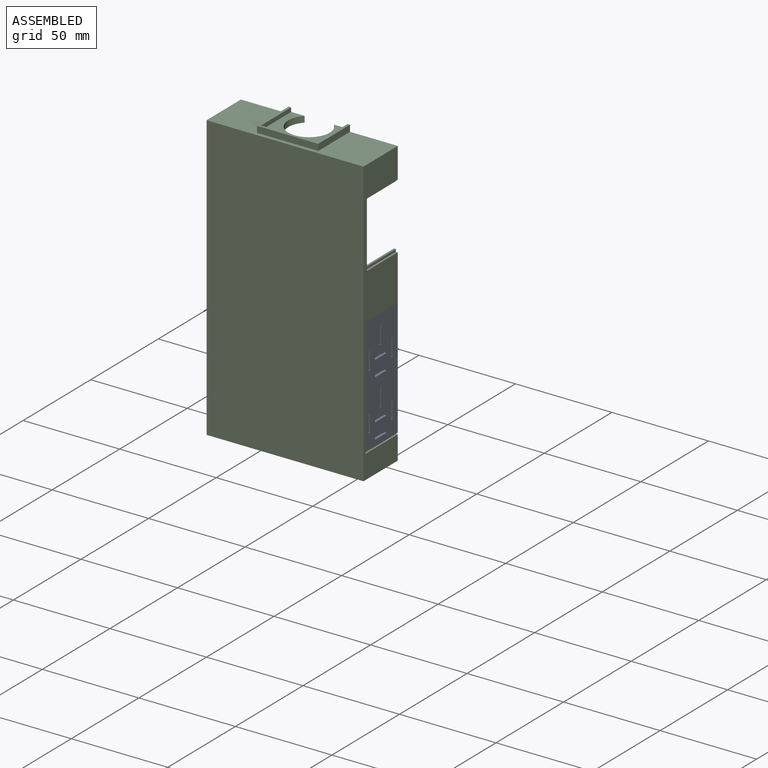
[diagram: assembled view]
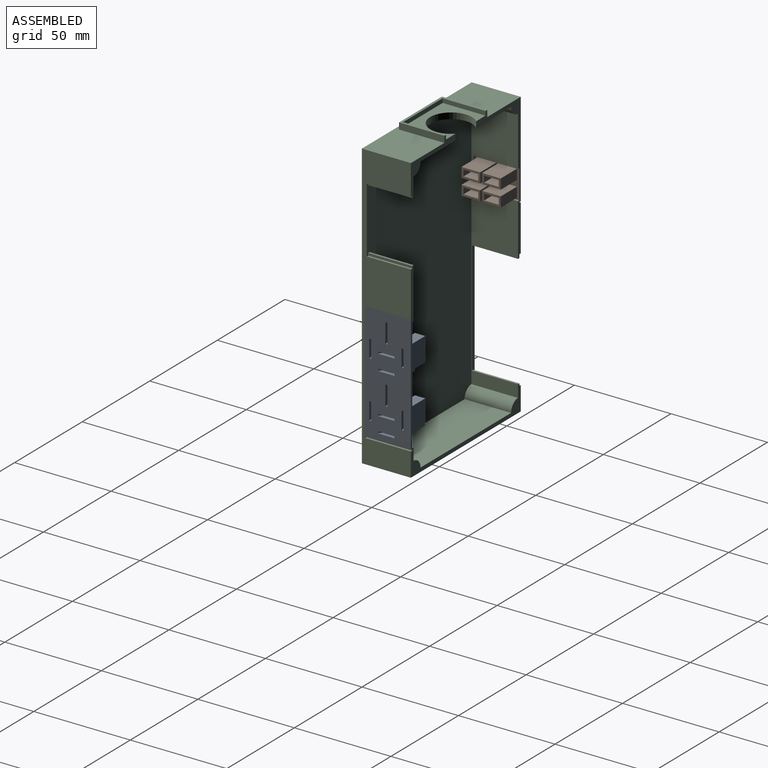
[diagram: assembled view, second angle]
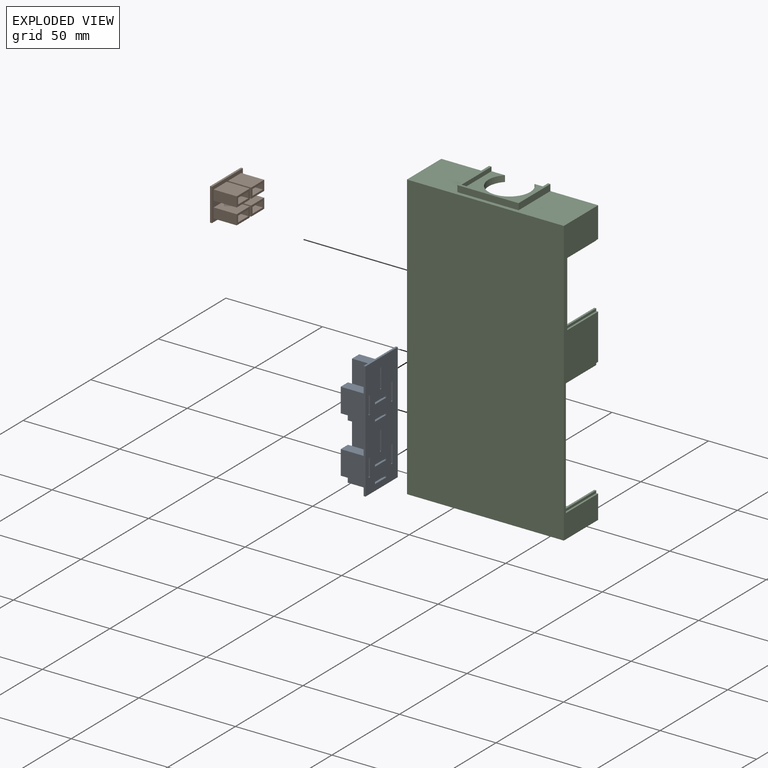
[diagram: exploded view]
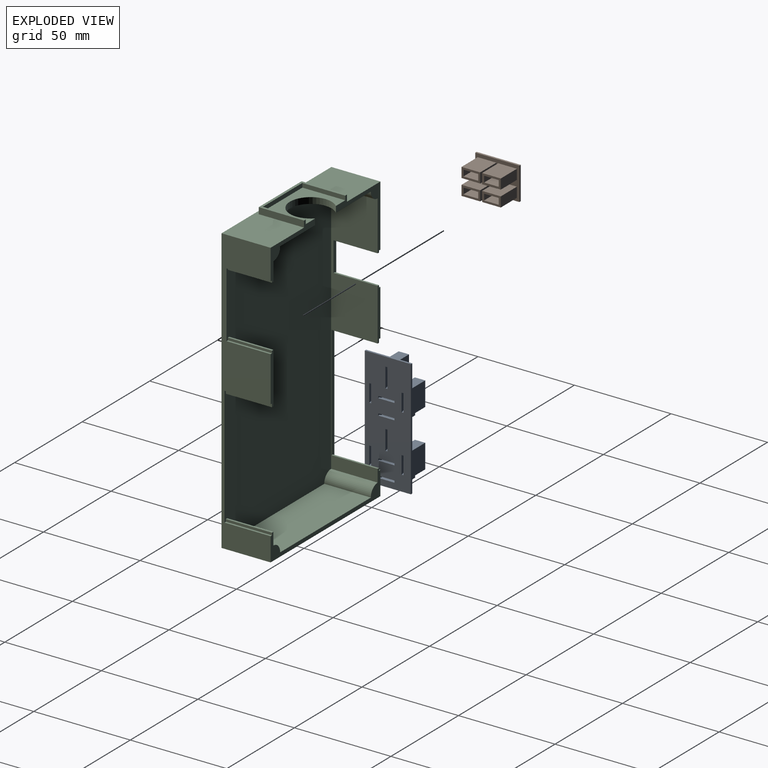
[diagram: exploded view, second angle]
ASSEMBLY  parts=3 mates=4
PART A: 142 faces, bbox 23.9x13x61 mm
  f0: plane 60.96x23.88mm, normal (0,-1,0), area 1363.6mm2, adj f12,f13,f14,f15,f16,f17,f18,f19
  f1: plane 60.96x23.88mm, normal (0,1,0), area 735.9mm2, adj f12,f13,f34,f55,f56,f57,f62,f79
  f2: plane 9.65x3.3mm, normal (0,1,0), area 23.4mm2, adj f35,f36,f37,f38,f110,f111,f112,f133
  f3: plane 9.65x3.3mm, normal (0,1,0), area 23.4mm2, adj f39,f40,f41,f42,f113,f114,f115,f134
  f4: plane 10.41x3.3mm, normal (0,1,0), area 25.1mm2, adj f43,f44,f45,f46,f116,f117,f118,f135
  f5: plane 11.43x3.3mm, normal (0,1,0), area 27.4mm2, adj f47,f48,f49,f50,f101,f102,f103,f104
  f6: plane 9.65x3.3mm, normal (0,1,0), area 23.4mm2, adj f22,f23,f24,f25,f67,f68,f69,f90
  f7: plane 9.65x3.3mm, normal (0,1,0), area 23.4mm2, adj f18,f19,f20,f21,f73,f74,f75,f92
  f8: plane 10.41x3.3mm, normal (0,1,0), area 25.1mm2, adj f30,f31,f32,f33,f70,f71,f72,f91
  f9: plane 10.41x3.3mm, normal (0,1,0), area 25.1mm2, adj f26,f27,f28,f29,f64,f65,f66,f95
  f10: plane 11.43x3.3mm, normal (0,1,0), area 27.4mm2, adj f14,f15,f16,f17,f58,f59,f60,f61
  f11: plane 10.41x3.3mm, normal (0,1,0), area 25.1mm2, adj f51,f52,f53,f54,f107,f108,f109,f138
  f12: plane 60.96x1.02mm, normal (1,0,0), area 61.9mm2, adj f0,f1,f13,f34
  f13: plane 23.88x1.02mm, normal (0,0,1), area 24.3mm2, adj f0,f1,f12,f141
  f14: plane 10.16x1.02mm, normal (-1,0,0), area 10.3mm2, adj f0,f10,f15,f17
  f15: plane 1.02x1.02mm, normal (0,0,-1), area 1mm2, adj f0,f10,f14,f16
  f16: plane 10.16x1.02mm, normal (1,0,0), area 10.3mm2, adj f0,f10,f15,f17
  f17: plane 1.02x1.02mm, normal (0,0,1), area 1mm2, adj f0,f10,f14,f16
  f18: plane 8.38x1.02mm, normal (0,0,-1), area 8.5mm2, adj f0,f7,f19,f21
  f19: plane 1.02x1.02mm, normal (1,0,0), area 1mm2, adj f0,f7,f18,f20
  f20: plane 8.38x1.02mm, normal (0,0,1), area 8.5mm2, adj f0,f7,f19,f21
  f21: plane 1.02x1.02mm, normal (-1,0,0), area 1mm2, adj f0,f7,f18,f20
  f22: plane 8.38x1.02mm, normal (0,0,-1), area 8.5mm2, adj f0,f6,f23,f25
  f23: plane 1.02x1.02mm, normal (1,0,0), area 1mm2, adj f0,f6,f22,f24
  f24: plane 8.38x1.02mm, normal (0,0,1), area 8.5mm2, adj f0,f6,f23,f25
  f25: plane 1.02x1.02mm, normal (-1,0,0), area 1mm2, adj f0,f6,f22,f24
  f26: plane 1.02x1.02mm, normal (0,0,-1), area 1mm2, adj f0,f9,f27,f29
  f27: plane 9.14x1.02mm, normal (1,0,0), area 9.3mm2, adj f0,f9,f26,f28
  f28: plane 1.02x1.02mm, normal (0,0,1), area 1mm2, adj f0,f9,f27,f29
  f29: plane 9.14x1.02mm, normal (-1,0,0), area 9.3mm2, adj f0,f9,f26,f28
  f30: plane 9.14x1.02mm, normal (-1,0,0), area 9.3mm2, adj f0,f8,f31,f33
  f31: plane 1.02x1.02mm, normal (0,0,-1), area 1mm2, adj f0,f8,f30,f32
  f32: plane 9.14x1.02mm, normal (1,0,0), area 9.3mm2, adj f0,f8,f31,f33
  f33: plane 1.02x1.02mm, normal (0,0,1), area 1mm2, adj f0,f8,f30,f32
  f34: plane 23.88x1.02mm, normal (0,0,-1), area 24.3mm2, adj f0,f1,f12,f141
  f35: plane 8.38x1.02mm, normal (0,0,1), area 8.5mm2, adj f0,f2,f36,f38
  f36: plane 1.02x1.02mm, normal (-1,0,0), area 1mm2, adj f0,f2,f35,f37
  f37: plane 8.38x1.02mm, normal (0,0,-1), area 8.5mm2, adj f0,f2,f36,f38
  f38: plane 1.02x1.02mm, normal (1,0,0), area 1mm2, adj f0,f2,f35,f37
  f39: plane 1.02x1.02mm, normal (1,0,0), area 1mm2, adj f0,f3,f40,f42
  f40: plane 8.38x1.02mm, normal (0,0,1), area 8.5mm2, adj f0,f3,f39,f41
  f41: plane 1.02x1.02mm, normal (-1,0,0), area 1mm2, adj f0,f3,f40,f42
  f42: plane 8.38x1.02mm, normal (0,0,-1), area 8.5mm2, adj f0,f3,f39,f41
  f43: plane 9.14x1.02mm, normal (-1,0,0), area 9.3mm2, adj f0,f4,f44,f46
  f44: plane 1.02x1.02mm, normal (0,0,-1), area 1mm2, adj f0,f4,f43,f45
  f45: plane 9.14x1.02mm, normal (1,0,0), area 9.3mm2, adj f0,f4,f44,f46
  f46: plane 1.02x1.02mm, normal (0,0,1), area 1mm2, adj f0,f4,f43,f45
  f47: plane 1.02x1.02mm, normal (0,0,-1), area 1mm2, adj f0,f5,f48,f50
  f48: plane 10.16x1.02mm, normal (1,0,0), area 10.3mm2, adj f0,f5,f47,f49
  f49: plane 1.02x1.02mm, normal (0,0,1), area 1mm2, adj f0,f5,f48,f50
  f50: plane 10.16x1.02mm, normal (-1,0,0), area 10.3mm2, adj f0,f5,f47,f49
  f51: plane 1.02x1.02mm, normal (0,0,-1), area 1mm2, adj f0,f11,f52,f54
  f52: plane 9.14x1.02mm, normal (1,0,0), area 9.3mm2, adj f0,f11,f51,f53
  f53: plane 1.02x1.02mm, normal (0,0,1), area 1mm2, adj f0,f11,f52,f54
  f54: plane 9.14x1.02mm, normal (-1,0,0), area 9.3mm2, adj f0,f11,f51,f53
  f55: plane 13.46x11.94mm, normal (1,0,0), area 160.7mm2, adj f1,f56,f62,f63
  f56: plane 11.94x5.33mm, normal (0,0,1), area 63.7mm2, adj f1,f55,f57,f63
  f57: plane 13.46x11.94mm, normal (-1,0,0), area 160.7mm2, adj f1,f56,f62,f63
  f58: plane 11.94x11.43mm, normal (-1,0,0), area 136.5mm2, adj f10,f59,f61,f63
  f59: plane 11.94x3.3mm, normal (0,0,1), area 39.4mm2, adj f10,f58,f60,f63
  f60: plane 11.94x11.43mm, normal (1,0,0), area 136.5mm2, adj f10,f59,f61,f63
  f61: plane 11.94x3.3mm, normal (0,0,-1), area 39.4mm2, adj f10,f58,f60,f63
  f62: plane 11.94x5.33mm, normal (0,0,-1), area 63.7mm2, adj f1,f55,f57,f63
  f63: plane 13.46x5.33mm, normal (0,1,0), area 34.1mm2, adj f55,f56,f57,f58,f59,f60,f61,f62
  f64: plane 11.94x3.3mm, normal (0,0,-1), area 39.4mm2, adj f9,f65,f95,f96
  f65: plane 11.94x10.41mm, normal (-1,0,0), area 124.3mm2, adj f9,f64,f66,f96
  f66: plane 11.94x3.3mm, normal (0,0,1), area 39.4mm2, adj f9,f65,f95,f96
  f67: plane 11.94x9.65mm, normal (0,0,-1), area 115.2mm2, adj f6,f68,f90,f96
  f68: plane 11.94x3.3mm, normal (-1,0,0), area 39.4mm2, adj f6,f67,f69,f96
  f69: plane 11.94x9.65mm, normal (0,0,1), area 115.2mm2, adj f6,f68,f90,f96
  f70: plane 11.94x3.3mm, normal (0,0,1), area 39.4mm2, adj f8,f71,f91,f96
  f71: plane 11.94x10.41mm, normal (1,0,0), area 124.3mm2, adj f8,f70,f72,f96
  f72: plane 11.94x3.3mm, normal (0,0,-1), area 39.4mm2, adj f8,f71,f91,f96
  f73: plane 11.94x9.65mm, normal (0,0,-1), area 115.2mm2, adj f7,f74,f92,f96
  f74: plane 11.94x3.3mm, normal (-1,0,0), area 39.4mm2, adj f7,f73,f75,f96
  f75: plane 11.94x9.65mm, normal (0,0,1), area 115.2mm2, adj f7,f74,f92,f96
  f76: plane 11.94x11.43mm, normal (0,0,-1), area 136.5mm2, adj f77,f93,f96,f97
  f77: plane 11.94x2.79mm, normal (-1,0,0), area 33.4mm2, adj f76,f78,f96,f97
  f78: plane 11.94x11.43mm, normal (0,0,1), area 136.5mm2, adj f77,f93,f96,f97
  f79: plane 11.94x4.27mm, normal (-1,0,0), area 50.9mm2, adj f1,f80,f94,f96
  f80: plane 11.94x11.43mm, normal (0,0,1), area 136.5mm2, adj f1,f79,f81,f96
  f81: plane 11.94x4.27mm, normal (1,0,0), area 50.9mm2, adj f1,f80,f82,f96
  f82: plane 11.94x5.33mm, normal (0,0,1), area 63.7mm2, adj f1,f81,f83,f96
  f83: plane 12.45x11.94mm, normal (-1,0,0), area 148.6mm2, adj f1,f82,f84,f96
  f84: plane 11.94x5.21mm, normal (0,0,-1), area 62.2mm2, adj f1,f83,f85,f96
  f85: plane 11.94x5.28mm, normal (-1,0,0), area 63.1mm2, adj f1,f84,f86,f96
  f86: plane 11.94x11.68mm, normal (0,0,-1), area 139.5mm2, adj f1,f85,f87,f96
  f87: plane 11.94x5.28mm, normal (1,0,0), area 63.1mm2, adj f1,f86,f88,f96
  f88: plane 11.94x5.21mm, normal (0,0,-1), area 62.2mm2, adj f1,f87,f89,f96
  f89: plane 12.45x11.94mm, normal (1,0,0), area 148.6mm2, adj f1,f88,f94,f96
  f90: plane 11.94x3.3mm, normal (1,0,0), area 39.4mm2, adj f6,f67,f69,f96
  f91: plane 11.94x10.41mm, normal (-1,0,0), area 124.3mm2, adj f8,f70,f72,f96
  f92: plane 11.94x3.3mm, normal (1,0,0), area 39.4mm2, adj f7,f73,f75,f96
  f93: plane 11.94x2.79mm, normal (1,0,0), area 33.4mm2, adj f76,f78,f96,f97
  f94: plane 11.94x5.33mm, normal (0,0,1), area 63.7mm2, adj f1,f79,f89,f96
  f95: plane 11.94x10.41mm, normal (1,0,0), area 124.3mm2, adj f9,f64,f66,f96
  f96: plane 22.1x17.73mm, normal (0,1,0), area 123.5mm2, adj f64,f65,f66,f67,f68,f69,f70,f71
  f97: plane 11.43x2.79mm, normal (0,1,0), area 31.9mm2, adj f76,f77,f78,f93
  f98: plane 13.46x11.94mm, normal (-1,0,0), area 160.7mm2, adj f1,f99,f105,f106
  f99: plane 11.94x5.33mm, normal (0,0,-1), area 63.7mm2, adj f1,f98,f100,f106
  f100: plane 13.46x11.94mm, normal (1,0,0), area 160.7mm2, adj f1,f99,f105,f106
  f101: plane 11.94x3.3mm, normal (0,0,1), area 39.4mm2, adj f5,f102,f104,f106
  f102: plane 11.94x11.43mm, normal (1,0,0), area 136.5mm2, adj f5,f101,f103,f106
  f103: plane 11.94x3.3mm, normal (0,0,-1), area 39.4mm2, adj f5,f102,f104,f106
  f104: plane 11.94x11.43mm, normal (-1,0,0), area 136.5mm2, adj f5,f101,f103,f106
  f105: plane 11.94x5.33mm, normal (0,0,1), area 63.7mm2, adj f1,f98,f100,f106
  f106: plane 13.46x5.33mm, normal (0,1,0), area 34.1mm2, adj f98,f99,f100,f101,f102,f103,f104,f105
  f107: plane 11.94x10.41mm, normal (1,0,0), area 124.3mm2, adj f11,f108,f138,f139
  f108: plane 11.94x3.3mm, normal (0,0,-1), area 39.4mm2, adj f11,f107,f109,f139
  f109: plane 11.94x10.41mm, normal (-1,0,0), area 124.3mm2, adj f11,f108,f138,f139
  f110: plane 11.94x3.3mm, normal (-1,0,0), area 39.4mm2, adj f2,f111,f133,f139
  f111: plane 11.94x9.65mm, normal (0,0,1), area 115.2mm2, adj f2,f110,f112,f139
  f112: plane 11.94x3.3mm, normal (1,0,0), area 39.4mm2, adj f2,f111,f133,f139
  f113: plane 11.94x9.65mm, normal (0,0,1), area 115.2mm2, adj f3,f114,f134,f139
  f114: plane 11.94x3.3mm, normal (1,0,0), area 39.4mm2, adj f3,f113,f115,f139
  f115: plane 11.94x9.65mm, normal (0,0,-1), area 115.2mm2, adj f3,f114,f134,f139
  f116: plane 11.94x3.3mm, normal (0,0,-1), area 39.4mm2, adj f4,f117,f135,f139
  f117: plane 11.94x10.41mm, normal (-1,0,0), area 124.3mm2, adj f4,f116,f118,f139
  f118: plane 11.94x3.3mm, normal (0,0,1), area 39.4mm2, adj f4,f117,f135,f139
  f119: plane 11.94x5.28mm, normal (1,0,0), area 63.1mm2, adj f1,f120,f136,f139
  f120: plane 11.94x5.21mm, normal (0,0,-1), area 62.2mm2, adj f1,f119,f121,f139
  f121: plane 12.45x11.94mm, normal (1,0,0), area 148.6mm2, adj f1,f120,f122,f139
  f122: plane 11.94x5.33mm, normal (0,0,1), area 63.7mm2, adj f1,f121,f123,f139
  f123: plane 11.94x4.27mm, normal (-1,0,0), area 50.9mm2, adj f1,f122,f124,f139
  f124: plane 11.94x11.43mm, normal (0,0,1), area 136.5mm2, adj f1,f123,f125,f139
  f125: plane 11.94x4.27mm, normal (1,0,0), area 50.9mm2, adj f1,f124,f126,f139
  f126: plane 11.94x5.33mm, normal (0,0,1), area 63.7mm2, adj f1,f125,f127,f139
  f127: plane 12.45x11.94mm, normal (-1,0,0), area 148.6mm2, adj f1,f126,f128,f139
  f128: plane 11.94x5.21mm, normal (0,0,-1), area 62.2mm2, adj f1,f127,f129,f139
  f129: plane 11.94x5.28mm, normal (-1,0,0), area 63.1mm2, adj f1,f128,f136,f139
  f130: plane 11.94x11.43mm, normal (0,0,1), area 136.5mm2, adj f131,f137,f139,f140
  f131: plane 11.94x2.79mm, normal (1,0,0), area 33.4mm2, adj f130,f132,f139,f140
  f132: plane 11.94x11.43mm, normal (0,0,-1), area 136.5mm2, adj f131,f137,f139,f140
  f133: plane 11.94x9.65mm, normal (0,0,-1), area 115.2mm2, adj f2,f110,f112,f139
  f134: plane 11.94x3.3mm, normal (-1,0,0), area 39.4mm2, adj f3,f113,f115,f139
  f135: plane 11.94x10.41mm, normal (1,0,0), area 124.3mm2, adj f4,f116,f118,f139
  f136: plane 11.94x11.68mm, normal (0,0,-1), area 139.5mm2, adj f1,f119,f129,f139
  f137: plane 11.94x2.79mm, normal (-1,0,0), area 33.4mm2, adj f130,f132,f139,f140
  f138: plane 11.94x3.3mm, normal (0,0,1), area 39.4mm2, adj f11,f107,f109,f139
  f139: plane 22.1x17.73mm, normal (0,1,0), area 123.5mm2, adj f107,f108,f109,f110,f111,f112,f113,f114
  f140: plane 11.43x2.79mm, normal (0,1,0), area 31.9mm2, adj f130,f131,f132,f137
  f141: plane 60.96x1.02mm, normal (-1,0,0), area 61.9mm2, adj f0,f1,f13,f34
PART B: 62 faces, bbox 22.9x13x17 mm
  f0: plane 22.86x17.02mm, normal (0,-1,0), area 366.5mm2, adj f2,f7,f8,f9,f10,f11,f12,f13
  f1: plane 22.86x17.02mm, normal (0,1,0), area 188mm2, adj f2,f23,f24,f25,f30,f32,f33,f34
  f2: plane 17.02x1.02mm, normal (1,0,0), area 17.3mm2, adj f0,f1,f59,f60
  f3: plane 7.62x3.18mm, normal (0,1,0), area 18.5mm2, adj f11,f12,f13,f14,f53,f54,f55,f56
  f4: plane 7.62x3.18mm, normal (0,1,0), area 18.5mm2, adj f15,f16,f17,f18,f44,f45,f46,f47
  f5: plane 7.62x3.18mm, normal (0,1,0), area 18.5mm2, adj f19,f20,f21,f22,f35,f36,f37,f38
  f6: plane 7.62x3.18mm, normal (0,1,0), area 18.5mm2, adj f7,f8,f9,f10,f26,f27,f28,f29
  f7: plane 1.02x0.89mm, normal (-1,0,0), area 0.9mm2, adj f0,f6,f8,f10
  f8: plane 6.35x1.02mm, normal (0,0,-1), area 6.5mm2, adj f0,f6,f7,f9
  f9: plane 1.02x0.89mm, normal (1,0,0), area 0.9mm2, adj f0,f6,f8,f10
  f10: plane 6.35x1.02mm, normal (0,0,1), area 6.5mm2, adj f0,f6,f7,f9
  f11: plane 1.02x0.89mm, normal (-1,0,0), area 0.9mm2, adj f0,f3,f12,f14
  f12: plane 6.35x1.02mm, normal (0,0,-1), area 6.5mm2, adj f0,f3,f11,f13
  f13: plane 1.02x0.89mm, normal (1,0,0), area 0.9mm2, adj f0,f3,f12,f14
  f14: plane 6.35x1.02mm, normal (0,0,1), area 6.5mm2, adj f0,f3,f11,f13
  f15: plane 1.02x0.89mm, normal (-1,0,0), area 0.9mm2, adj f0,f4,f16,f18
  f16: plane 6.35x1.02mm, normal (0,0,-1), area 6.5mm2, adj f0,f4,f15,f17
  f17: plane 1.02x0.89mm, normal (1,0,0), area 0.9mm2, adj f0,f4,f16,f18
  f18: plane 6.35x1.02mm, normal (0,0,1), area 6.5mm2, adj f0,f4,f15,f17
  f19: plane 1.02x0.89mm, normal (-1,0,0), area 0.9mm2, adj f0,f5,f20,f22
  f20: plane 6.35x1.02mm, normal (0,0,-1), area 6.5mm2, adj f0,f5,f19,f21
  f21: plane 1.02x0.89mm, normal (1,0,0), area 0.9mm2, adj f0,f5,f20,f22
  f22: plane 6.35x1.02mm, normal (0,0,1), area 6.5mm2, adj f0,f5,f19,f21
  f23: plane 11.94x5.21mm, normal (1,0,0), area 62.2mm2, adj f1,f24,f30,f31
  f24: plane 11.94x9.65mm, normal (0,0,1), area 115.2mm2, adj f1,f23,f25,f31
  f25: plane 11.94x5.21mm, normal (-1,0,0), area 62.2mm2, adj f1,f24,f30,f31
  f26: plane 11.94x7.62mm, normal (0,0,-1), area 91mm2, adj f6,f27,f29,f31
  f27: plane 11.94x3.18mm, normal (-1,0,0), area 37.9mm2, adj f6,f26,f28,f31
  f28: plane 11.94x7.62mm, normal (0,0,1), area 91mm2, adj f6,f27,f29,f31
  f29: plane 11.94x3.18mm, normal (1,0,0), area 37.9mm2, adj f6,f26,f28,f31
  f30: plane 11.94x9.65mm, normal (0,0,-1), area 115.2mm2, adj f1,f23,f25,f31
  f31: plane 9.65x5.21mm, normal (0,1,0), area 26.1mm2, adj f23,f24,f25,f26,f27,f28,f29,f30
  f32: plane 11.94x5.21mm, normal (1,0,0), area 62.2mm2, adj f1,f33,f39,f40
  f33: plane 11.94x9.65mm, normal (0,0,1), area 115.2mm2, adj f1,f32,f34,f40
  f34: plane 11.94x5.21mm, normal (-1,0,0), area 62.2mm2, adj f1,f33,f39,f40
  f35: plane 11.94x7.62mm, normal (0,0,-1), area 91mm2, adj f5,f36,f38,f40
  f36: plane 11.94x3.18mm, normal (-1,0,0), area 37.9mm2, adj f5,f35,f37,f40
  f37: plane 11.94x7.62mm, normal (0,0,1), area 91mm2, adj f5,f36,f38,f40
  f38: plane 11.94x3.18mm, normal (1,0,0), area 37.9mm2, adj f5,f35,f37,f40
  f39: plane 11.94x9.65mm, normal (0,0,-1), area 115.2mm2, adj f1,f32,f34,f40
  f40: plane 9.65x5.21mm, normal (0,1,0), area 26.1mm2, adj f32,f33,f34,f35,f36,f37,f38,f39
  f41: plane 11.94x9.65mm, normal (0,0,1), area 115.2mm2, adj f1,f42,f48,f49
  f42: plane 11.94x5.21mm, normal (-1,0,0), area 62.2mm2, adj f1,f41,f43,f49
  f43: plane 11.94x9.65mm, normal (0,0,-1), area 115.2mm2, adj f1,f42,f48,f49
  f44: plane 11.94x3.18mm, normal (1,0,0), area 37.9mm2, adj f4,f45,f47,f49
  f45: plane 11.94x7.62mm, normal (0,0,-1), area 91mm2, adj f4,f44,f46,f49
  f46: plane 11.94x3.18mm, normal (-1,0,0), area 37.9mm2, adj f4,f45,f47,f49
  f47: plane 11.94x7.62mm, normal (0,0,1), area 91mm2, adj f4,f44,f46,f49
  f48: plane 11.94x5.21mm, normal (1,0,0), area 62.2mm2, adj f1,f41,f43,f49
  f49: plane 9.65x5.21mm, normal (0,1,0), area 26.1mm2, adj f41,f42,f43,f44,f45,f46,f47,f48
  f50: plane 11.94x5.21mm, normal (-1,0,0), area 62.2mm2, adj f1,f51,f57,f58
  f51: plane 11.94x9.65mm, normal (0,0,-1), area 115.2mm2, adj f1,f50,f52,f58
  f52: plane 11.94x5.21mm, normal (1,0,0), area 62.2mm2, adj f1,f51,f57,f58
  f53: plane 11.94x7.62mm, normal (0,0,-1), area 91mm2, adj f3,f54,f56,f58
  f54: plane 11.94x3.18mm, normal (-1,0,0), area 37.9mm2, adj f3,f53,f55,f58
  f55: plane 11.94x7.62mm, normal (0,0,1), area 91mm2, adj f3,f54,f56,f58
  f56: plane 11.94x3.18mm, normal (1,0,0), area 37.9mm2, adj f3,f53,f55,f58
  f57: plane 11.94x9.65mm, normal (0,0,1), area 115.2mm2, adj f1,f50,f52,f58
  f58: plane 9.65x5.21mm, normal (0,1,0), area 26.1mm2, adj f50,f51,f52,f53,f54,f55,f56,f57
  f59: plane 22.86x1.02mm, normal (0,0,1), area 23.2mm2, adj f0,f1,f2,f61
  f60: plane 22.86x1.02mm, normal (0,0,-1), area 23.2mm2, adj f0,f1,f2,f61
  f61: plane 17.02x1.02mm, normal (-1,0,0), area 17.3mm2, adj f0,f1,f59,f60
PART C: 56 faces, bbox 81.3x25.4x150.6 mm
  f0: plane 23.88x1.02mm, normal (0,0,-1), area 24.3mm2, adj f2,f4,f9,f55
  f1: plane 61.72x2.03mm, normal (0,1,0), area 122.3mm2, adj f3,f12,f13,f46,f48,f49,f52,f53
  f2: plane 61.72x2.03mm, normal (0,1,0), area 122.3mm2, adj f0,f8,f9,f47,f50,f51,f54,f55
  f3: plane 23.88x1.02mm, normal (0,0,1), area 24.3mm2, adj f1,f10,f12,f49
  f4: plane 26.98x2.03mm, normal (0,1,0), area 51.7mm2, adj f0,f6,f8,f9,f44,f45,f54,f55
  f5: plane 26.56x2.03mm, normal (0,1,0), area 50.9mm2, adj f12,f13,f37,f38,f40,f46,f52,f53
  f6: plane 22.86x1.02mm, normal (0,0,1), area 23.2mm2, adj f4,f7,f9,f44
  f7: plane 17.53x2.03mm, normal (0,1,0), area 33.3mm2, adj f6,f8,f9,f41,f42,f43,f44,f45
  f8: plane 133.1x24.13mm, normal (1,0,0), area 1462.3mm2, adj f2,f4,f7,f10,f20,f21,f23,f25
  f9: plane 147.32x25.4mm, normal (-1,0,0), area 1867.6mm2, adj f0,f2,f4,f6,f7,f10,f15,f18
  f10: plane 81.28x13.54mm, normal (0,1,0), area 249.9mm2, adj f3,f8,f9,f12,f13,f16,f18,f24
  f11: plane 34.04x2.03mm, normal (0,1,0), area 66.8mm2, adj f12,f13,f35,f36,f37,f38,f39,f40
  f12: plane 147.32x25.4mm, normal (1,0,0), area 1490.2mm2, adj f1,f3,f5,f10,f11,f14,f15,f18
  f13: plane 133.1x24.13mm, normal (-1,0,0), area 1084.9mm2, adj f1,f5,f10,f11,f14,f21,f22,f24
  f14: plane 32.99x20.09mm, normal (0,1,0), area 128.4mm2, adj f12,f13,f15,f17,f22,f27,f29,f31
  f15: plane 81.28x25.4mm, normal (0,0,1), area 1318.5mm2, adj f9,f12,f14,f19,f20,f26,f27,f28
  f16: plane 67.06x24.13mm, normal (0,0,1), area 1618.1mm2, adj f10,f21,f24,f25
  f17: plane 67.06x24.13mm, normal (0,0,-1), area 1285.4mm2, adj f14,f20,f21,f22,f23,f34
  f18: plane 81.28x25.4mm, normal (0,0,-1), area 2064.5mm2, adj f9,f10,f12,f19
  f19: plane 147.32x81.28mm, normal (0,-1,0), area 11974.2mm2, adj f9,f12,f15,f18
  f20: plane 36.18x32.99mm, normal (0,1,0), area 161.1mm2, adj f8,f9,f15,f17,f23,f28,f29,f32
  f21: plane 143.26x77.22mm, normal (0,1,0), area 10980.6mm2, adj f8,f13,f16,f17,f22,f23,f24,f25
  f22: cylinder r=5.08mm len=24.13mm, axis (0,1,0), area 192.5mm2, adj f13,f14,f17,f21
  f23: cylinder r=5.08mm len=24.13mm, axis (0,1,0), area 192.5mm2, adj f8,f17,f20,f21
  f24: cylinder r=5.08mm len=24.13mm, axis (0,1,0), area 192.5mm2, adj f10,f13,f16,f21
  f25: cylinder r=5.08mm len=24.13mm, axis (0,1,0), area 192.5mm2, adj f8,f10,f16,f21
  f26: plane 31.75x3.3mm, normal (0,-1,0), area 104.8mm2, adj f15,f27,f28,f29
  f27: plane 23.5x3.3mm, normal (1,0,0), area 77.6mm2, adj f14,f15,f26,f29
  f28: plane 23.5x3.3mm, normal (-1,0,0), area 77.6mm2, adj f15,f20,f26,f29
  f29: plane 31.75x23.5mm, normal (0,0,1), area 96.8mm2, adj f14,f20,f26,f27,f28,f30,f31,f32
  f30: plane 29.21x2.16mm, normal (0,1,0), area 63.1mm2, adj f29,f31,f32,f33
  f31: plane 22.23x2.16mm, normal (-1,0,0), area 48mm2, adj f14,f29,f30,f33
  f32: plane 22.23x2.16mm, normal (1,0,0), area 48mm2, adj f20,f29,f30,f33
  f33: plane 29.21x22.23mm, normal (0,0,1), area 316.6mm2, adj f14,f20,f30,f31,f32,f34
  f34: cylinder r=10.79mm len=21.59mm, axis (0,0,1), area 161.4mm2, adj f14,f17,f20,f33
  f35: plane 22.86x1.02mm, normal (0,0,-1), area 23.2mm2, adj f11,f12,f14,f36
  f36: plane 22.86x1.02mm, normal (1,0,0), area 23.2mm2, adj f11,f14,f35,f39
  f37: plane 22.86x1.02mm, normal (0,0,1), area 23.2mm2, adj f5,f11,f12,f38
  f38: plane 22.86x1.27mm, normal (1,0,0), area 29mm2, adj f5,f11,f37,f40
  f39: plane 22.86x1.02mm, normal (0,0,-1), area 23.2mm2, adj f11,f13,f14,f36
  f40: plane 22.86x1.02mm, normal (0,0,1), area 23.2mm2, adj f5,f11,f13,f38
  f41: plane 22.86x1.02mm, normal (0,0,-1), area 23.2mm2, adj f7,f9,f20,f43
  f42: plane 22.86x1.02mm, normal (0,0,-1), area 23.2mm2, adj f7,f8,f20,f43
  f43: plane 22.86x1.02mm, normal (-1,0,0), area 23.2mm2, adj f7,f20,f41,f42
  f44: plane 22.86x1.27mm, normal (-1,0,0), area 29mm2, adj f4,f6,f7,f45
  f45: plane 22.86x1.02mm, normal (0,0,1), area 23.2mm2, adj f4,f7,f8,f44
  f46: plane 23.88x1.02mm, normal (0,0,-1), area 24.3mm2, adj f1,f5,f12,f52
  f47: plane 23.88x1.02mm, normal (0,0,1), area 24.3mm2, adj f2,f9,f10,f50
  f48: plane 23.88x1.02mm, normal (0,0,1), area 24.3mm2, adj f1,f10,f13,f49
  f49: plane 23.88x1.27mm, normal (1,0,0), area 30.3mm2, adj f1,f3,f10,f48
  f50: plane 23.88x1.27mm, normal (-1,0,0), area 30.3mm2, adj f2,f10,f47,f51
  f51: plane 23.88x1.02mm, normal (0,0,1), area 24.3mm2, adj f2,f8,f10,f50
  f52: plane 23.88x1.78mm, normal (1,0,0), area 42.5mm2, adj f1,f5,f46,f53
  f53: plane 23.88x1.02mm, normal (0,0,-1), area 24.3mm2, adj f1,f5,f13,f52
  f54: plane 23.88x1.02mm, normal (0,0,-1), area 24.3mm2, adj f2,f4,f8,f55
  f55: plane 23.88x1.78mm, normal (-1,0,0), area 42.5mm2, adj f0,f2,f4,f54
PLACE A rot(axis=(0,0,1),90deg) t=(-110.49,-38.34,41.4)mm
PLACE B rot(axis=(-0.71,-0.71,0),180deg) t=(-190.75,-18.86,102.08)mm
PLACE C t=(-145.94,-16.29,45.26)mm
MATE planar B.f1 <-> C.f43  axis (1,0,0) through (-189.74,-27.72,78.71)mm
MATE planar A.f13 <-> C.f46  axis (0,0,1) through (-109.98,-28.23,45.69)mm
MATE planar A.f1 <-> C.f52  axis (-1,0,0) through (-110.49,-26.33,42.65)mm
MATE planar B.f60 <-> C.f41  axis (0,0,1) through (-190.24,-27.72,87.16)mm
